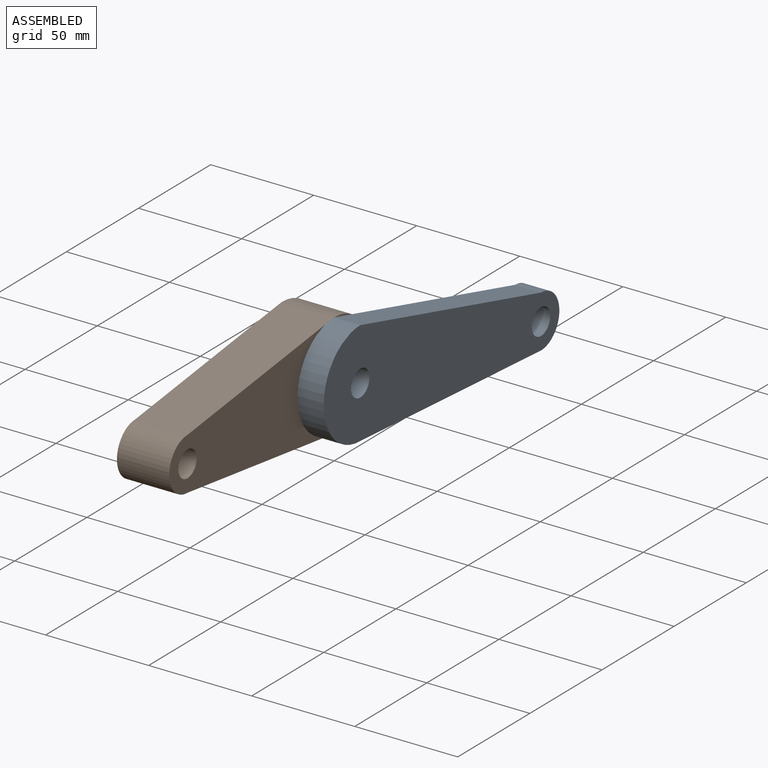
[diagram: assembled view]
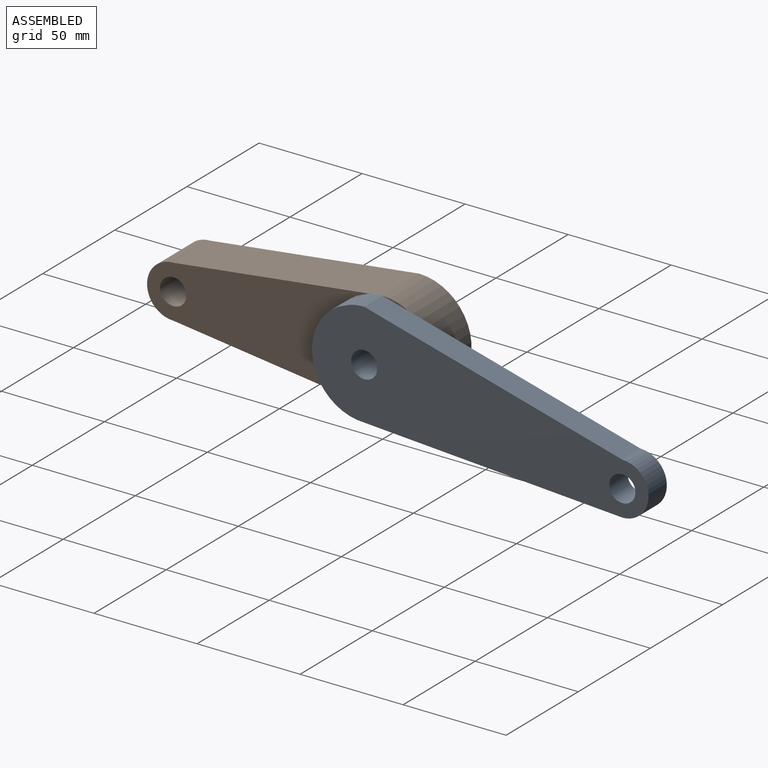
[diagram: assembled view, second angle]
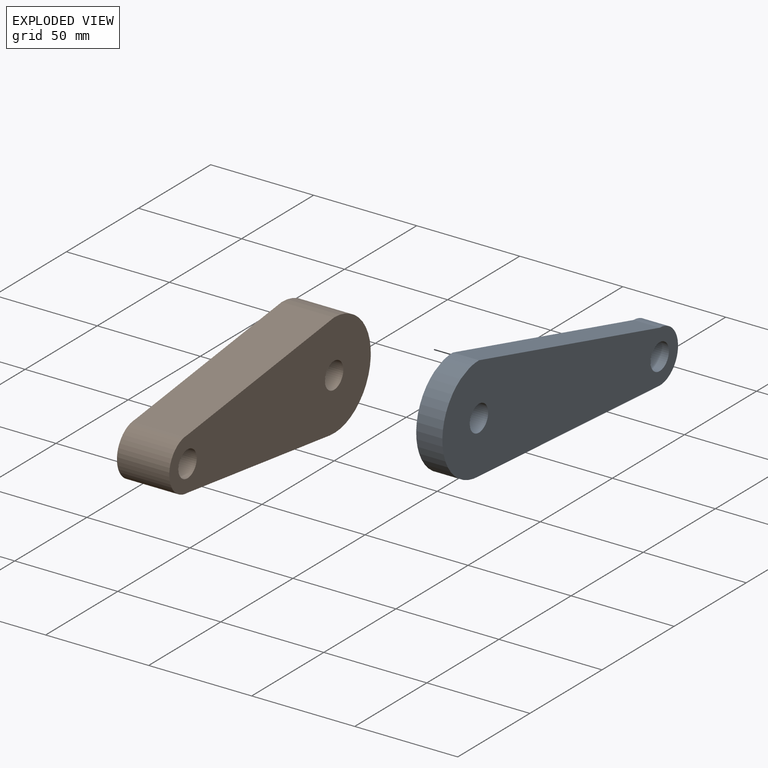
[diagram: exploded view]
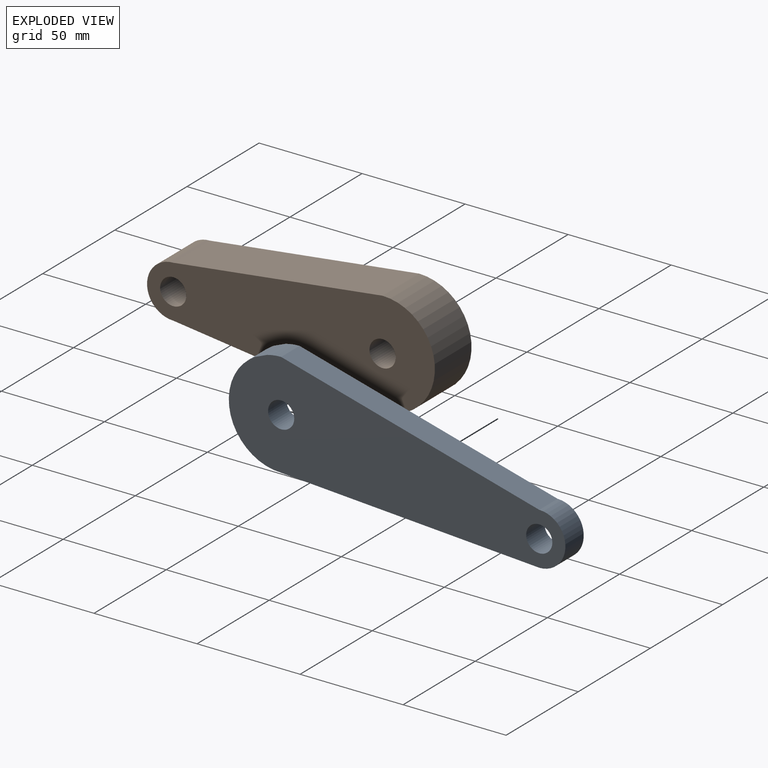
[diagram: exploded view, second angle]
ASSEMBLY  parts=2 mates=2
PART A: 10 faces, bbox 136.2x12.7x118.8 mm
  f0: plane 91.71x91.71mm, normal (0.71,0,0.71), area 1647.1mm2, adj f1,f6,f8,f9
  f1: cylinder r=25.4mm len=12.7mm, axis (0,-1,0), area 88.7mm2, adj f0,f2,f8,f9
  f2: plane 12.7x6.25mm, normal (0.12,0,0.99), area 80mm2, adj f1,f3,f8,f9
  f3: cylinder r=25.4mm len=47.4mm, axis (0,-1,0), area 844.5mm2, adj f2,f4,f8,f9
  f4: plane 104.41x69.71mm, normal (-0.56,0,-0.83), area 1594.4mm2, adj f3,f6,f8,f9
  f5: cylinder r=6.35mm len=12.7mm, axis (0,-1,0), area 506.7mm2, adj f8,f9
  f6: cylinder r=12.7mm len=23.7mm, axis (0,-1,0), area 506.7mm2, adj f0,f4,f8,f9
  f7: cylinder r=6.35mm len=12.7mm, axis (0,-1,0), area 506.7mm2, adj f8,f9
  f8: plane 136.16x118.81mm, normal (0,1,0), area 5785.5mm2, adj f0,f1,f2,f3,f4,f5,f6,f7
  f9: plane 136.16x118.81mm, normal (0,-1,0), area 5785.5mm2, adj f0,f1,f2,f3,f4,f5,f6,f7
PART B: 8 faces, bbox 139.7x25.4x50.8 mm
  f0: plane 101.6x25.4mm, normal (0.12,0,0.99), area 2600.7mm2, adj f1,f4,f6,f7
  f1: cylinder r=25.4mm len=50.8mm, axis (0,1,0), area 2108.3mm2, adj f0,f2,f6,f7
  f2: plane 98.4x25.4mm, normal (0.13,0,-0.99), area 2519.4mm2, adj f1,f4,f6,f7
  f3: cylinder r=6.35mm len=25.4mm, axis (0,1,0), area 1013.4mm2, adj f6,f7
  f4: cylinder r=12.7mm len=25.4mm, axis (0,1,0), area 1013.4mm2, adj f0,f2,f6,f7
  f5: cylinder r=6.35mm len=25.4mm, axis (0,1,0), area 1013.4mm2, adj f6,f7
  f6: plane 139.7x50.8mm, normal (0,-1,0), area 4894.5mm2, adj f0,f1,f2,f3,f4,f5
  f7: plane 139.7x50.8mm, normal (0,1,0), area 4894.5mm2, adj f0,f1,f2,f3,f4,f5
PLACE A rot(axis=(0.25,-0.25,0.94),93.8deg) t=(12.7,0,0)mm
PLACE B rot(axis=(0,0,-1),90deg) t=(0,0,0)mm fixed
MATE cylindrical A.f7 <-> B.f3  axis (1,0,0) through (12.7,0,0)mm
MATE planar A.f8 <-> B.f7  axis (-1,0,0) through (0,47.02,-8.11)mm
